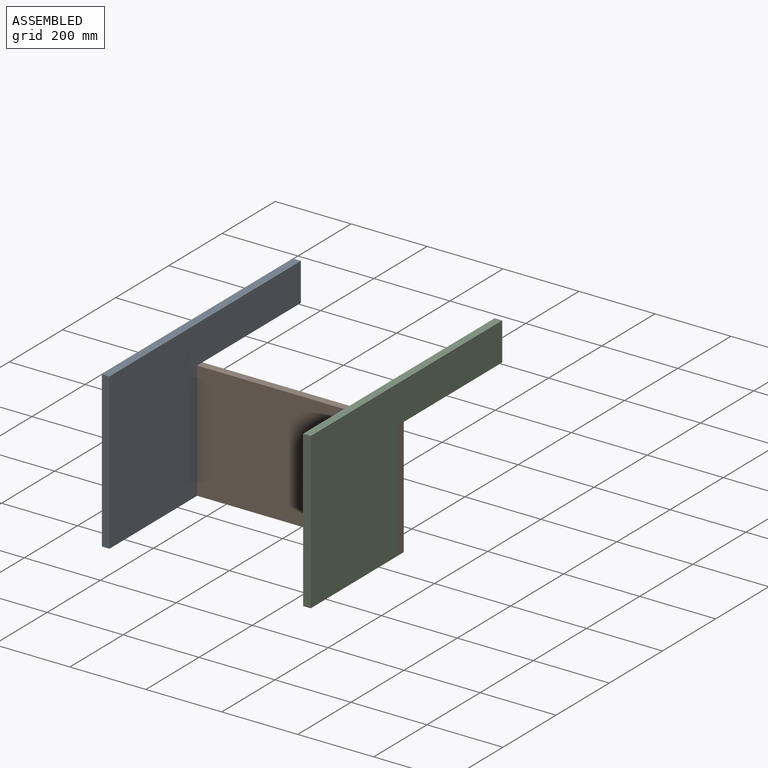
[diagram: assembled view]
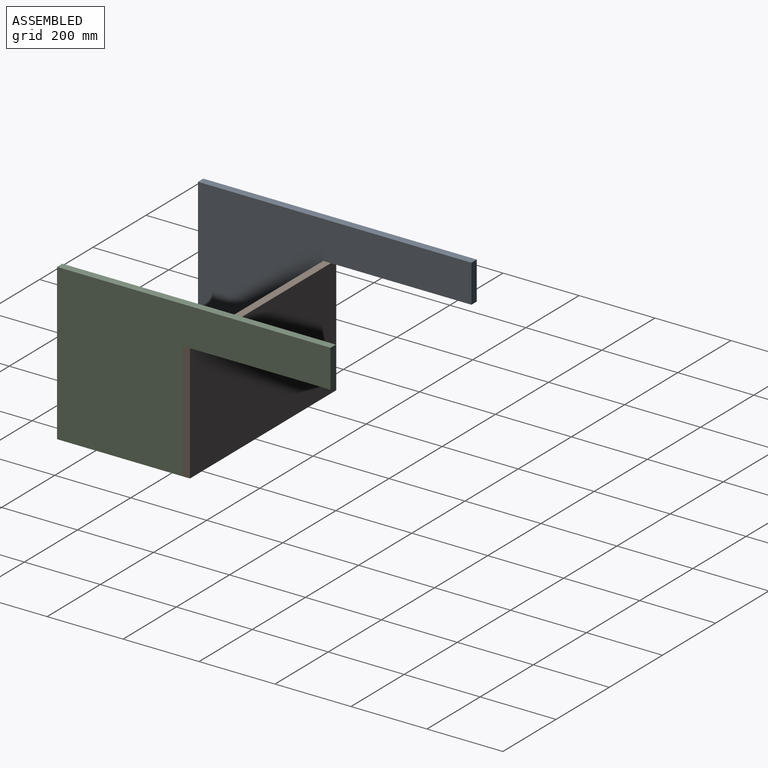
[diagram: assembled view, second angle]
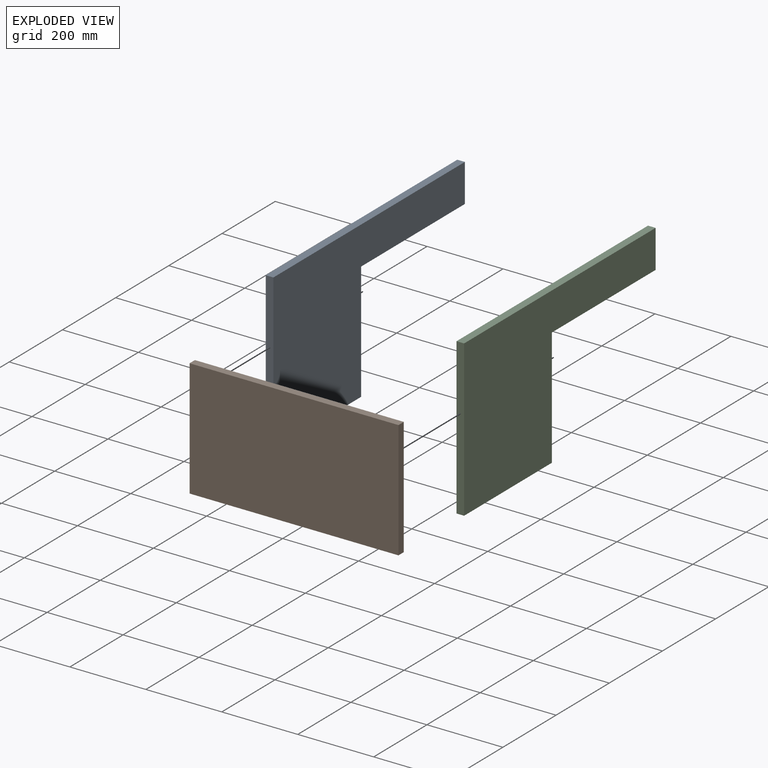
[diagram: exploded view]
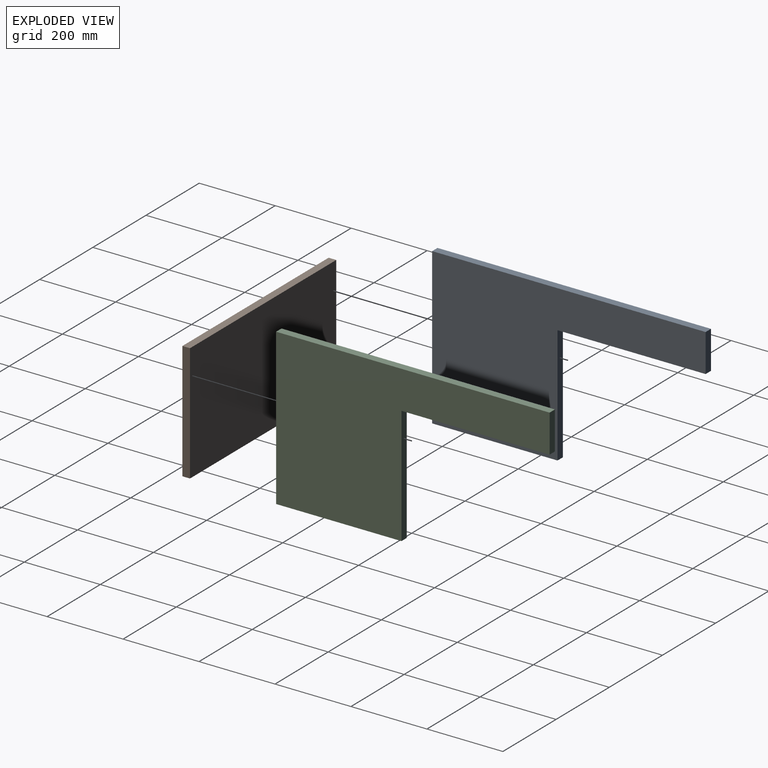
[diagram: exploded view, second angle]
ASSEMBLY  parts=3 mates=2
PART A: 8 faces, bbox 20x720x410 mm
  f0: plane 410x20mm, normal (0,-1,0), area 8200mm2, adj f1,f5,f6,f7
  f1: plane 330x20mm, normal (0,0,-1), area 6600mm2, adj f0,f2,f6,f7
  f2: plane 310x20mm, normal (0,1,0), area 6200mm2, adj f1,f3,f6,f7
  f3: plane 390x20mm, normal (0,0,-1), area 7800mm2, adj f2,f4,f6,f7
  f4: plane 100x20mm, normal (0,1,0), area 2000mm2, adj f3,f5,f6,f7
  f5: plane 720x20mm, normal (0,0,1), area 14400mm2, adj f0,f4,f6,f7
  f6: plane 720x410mm, normal (1,0,0), area 174300mm2, adj f0,f1,f2,f3,f4,f5
  f7: plane 720x410mm, normal (-1,0,0), area 174300mm2, adj f0,f1,f2,f3,f4,f5
PART B: 6 faces, bbox 550x20x310 mm
  f0: plane 550x20mm, normal (0,0,1), area 11000mm2, adj f1,f3,f4,f5
  f1: plane 310x20mm, normal (-1,0,0), area 6200mm2, adj f0,f2,f4,f5
  f2: plane 550x20mm, normal (0,0,-1), area 11000mm2, adj f1,f3,f4,f5
  f3: plane 310x20mm, normal (1,0,0), area 6200mm2, adj f0,f2,f4,f5
  f4: plane 550x310mm, normal (0,-1,0), area 170500mm2, adj f0,f1,f2,f3
  f5: plane 550x310mm, normal (0,1,0), area 170500mm2, adj f0,f1,f2,f3
PART C: same geometry as A
PLACE A t=(-77.64,137.74,-37.57)mm
PLACE B t=(197.36,66.7,-192.57)mm
PLACE C t=(452.36,137.74,-37.57)mm
MATE fastened A.f2 <-> B.f4  axis (0,1,0) through (-77.64,46.7,-192.57)mm
MATE fastened C.f2 <-> B.f4  axis (0,1,0) through (472.36,46.7,-192.57)mm
